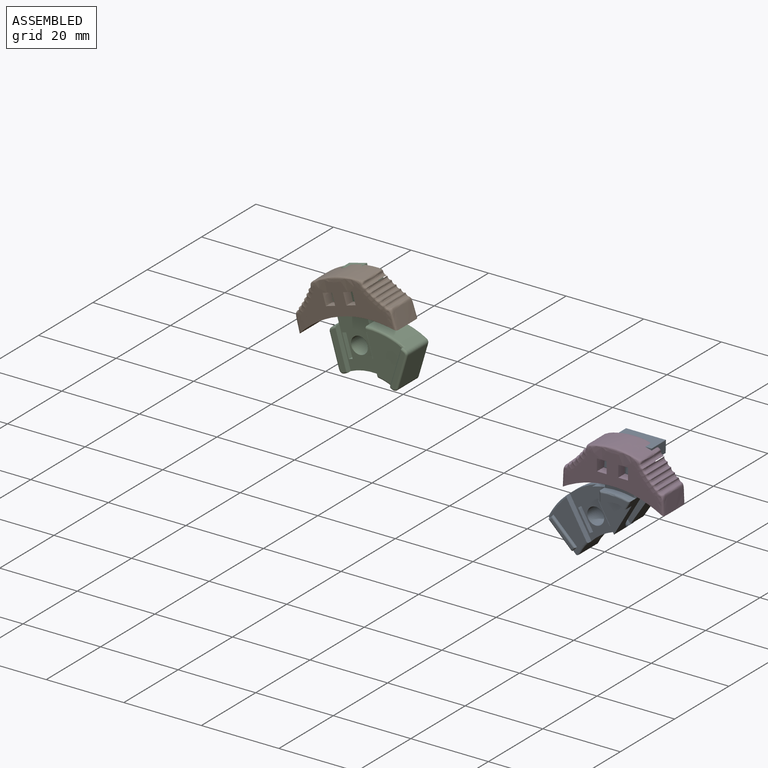
[diagram: assembled view]
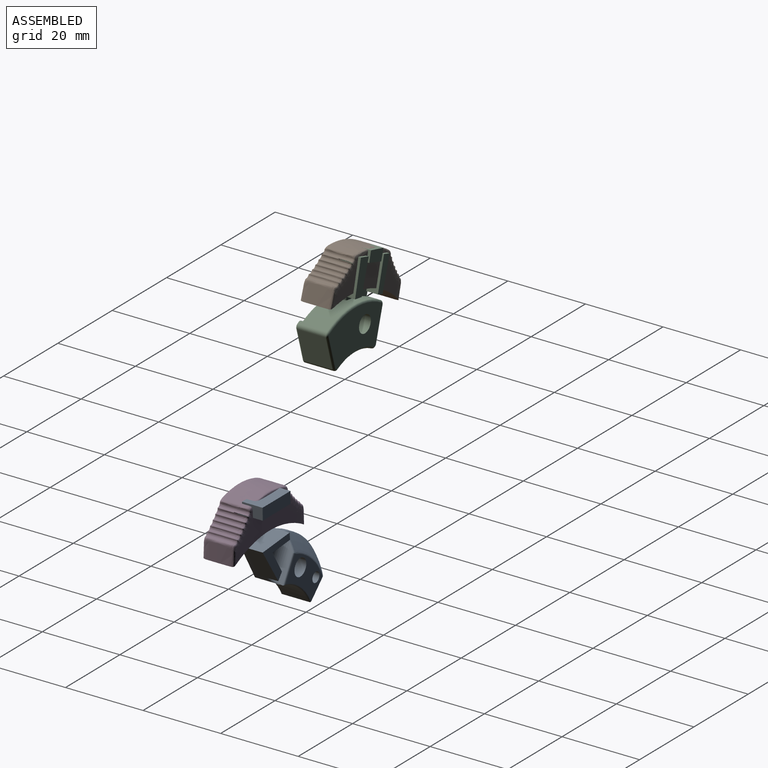
[diagram: assembled view, second angle]
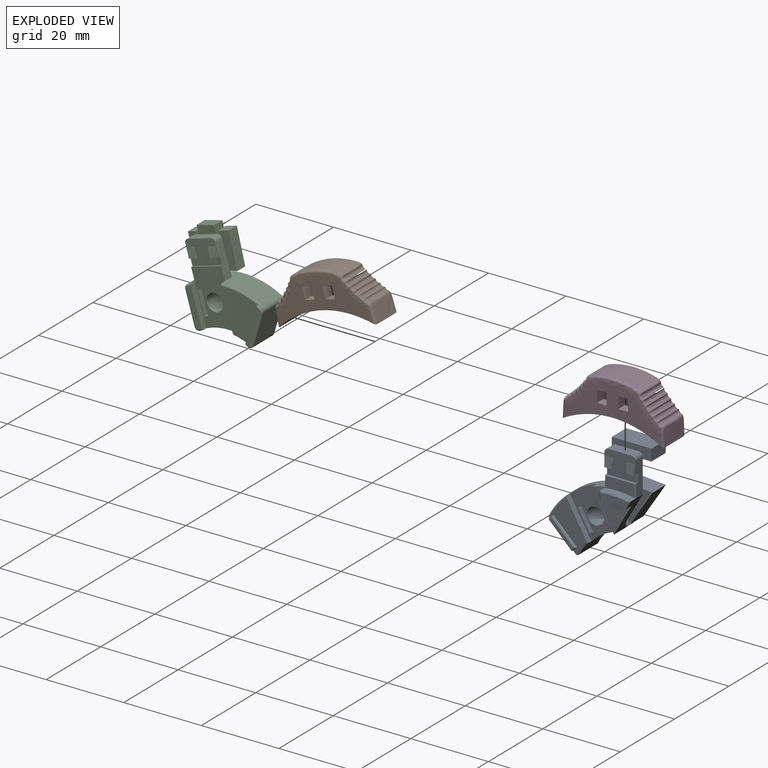
[diagram: exploded view]
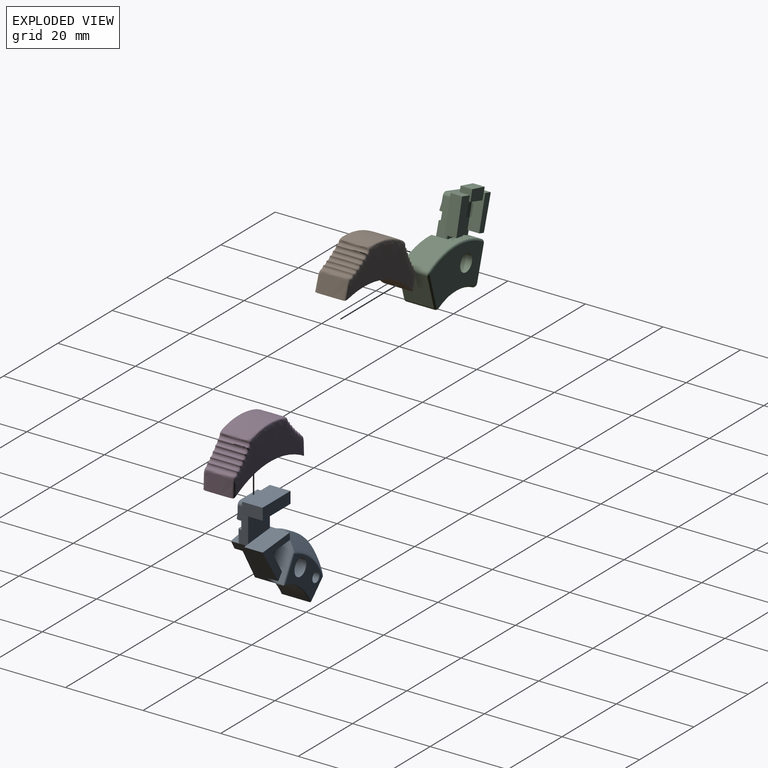
[diagram: exploded view, second angle]
ASSEMBLY  parts=4 mates=2
PART A: 93 faces, bbox 34.7x10.1x21.5 mm
  f0: plane 2.17x1.95mm, normal (-0.87,0,0.5), area 4.9mm2, adj f17,f19,f24,f74
  f1: plane 11.58x8mm, normal (0,-1,0), area 61.5mm2, adj f18,f23,f25,f27,f29,f40,f41,f42
  f2: plane 9.37x8mm, normal (-0.87,0,0.5), area 34.7mm2, adj f3,f8,f9,f15,f18,f53,f75,f77
  f3: plane 8.71x7.36mm, normal (0,-1,0), area 24mm2, adj f2,f4,f5,f6,f9,f10,f11,f12
  f4: plane 7.58x4.38mm, normal (0.87,0,-0.5), area 19.7mm2, adj f3,f8,f9,f15,f20,f52,f76,f78
  f5: plane 3.17x2.98mm, normal (0.08,-0.99,0.14), area 5.1mm2, adj f3,f9,f12,f14
  f6: plane 5.2x3mm, normal (0.5,0,0.87), area 16.2mm2, adj f3,f52,f53,f84
  f7: plane 7.58x6.36mm, normal (0,-1,0), area 20.1mm2, adj f15,f17,f75,f78
  f8: plane 11.14x10.83mm, normal (0,1,0), area 62mm2, adj f2,f4,f18,f81
  f9: plane 6.93x4mm, normal (-0.5,0,-0.87), area 7.3mm2, adj f2,f3,f4,f5,f10,f11,f12,f13
  f10: plane 3.17x2.98mm, normal (0.08,-0.99,0.14), area 5.1mm2, adj f3,f9,f11,f13
  f11: plane 2.17x1.25mm, normal (0.87,0,-0.5), area 0.5mm2, adj f3,f9,f10
  f12: plane 2.17x1.25mm, normal (-0.87,0,0.5), area 0.5mm2, adj f3,f5,f9
  f13: plane 2.17x1.25mm, normal (-0.87,0,0.5), area 0.5mm2, adj f3,f9,f10
  f14: plane 2.17x1.25mm, normal (0.87,0,-0.5), area 0.5mm2, adj f3,f5,f9
  f15: plane 6.93x4mm, normal (0.5,0,0.87), area 5.6mm2, adj f2,f4,f7,f16,f75,f76,f77,f78
  f16: plane 7.2x5.37mm, normal (0,-1,0), area 14.9mm2, adj f9,f15,f76,f77
  f17: cylinder r=20mm len=6.71mm, axis (0,1,0), area 12.6mm2, adj f0,f7,f18,f20,f73,f75,f78
  f18: cylinder r=20mm len=25mm, axis (0,1,0), area 49.4mm2, adj f1,f2,f8,f17,f20,f23,f24,f29
  f19: extruded ~5.8x3.46mm, area 16.6mm2, adj f0,f20,f21,f24,f72,f74
  f20: plane 10.06x6.52mm, normal (0.5,0,-0.87), area 34.4mm2, adj f4,f17,f18,f19,f23,f24,f25,f54
  f21: plane 6.88x4.81mm, normal (0,-1,0), area 11mm2, adj f19,f72,f73,f74
  f22: plane 6.93x5.53mm, normal (0,1,0), area 19.2mm2, adj f38,f56,f85,f89,f90
  f23: plane 11.18x1.6mm, normal (-1,0,0), area 17.9mm2, adj f1,f18,f20,f24
  f24: plane 11.18x7.89mm, normal (0,-1,0), area 46.2mm2, adj f0,f18,f19,f20,f23
  f25: cylinder r=14mm len=11.54mm, axis (0,1,0), area 70.7mm2, adj f1,f20,f26,f29,f54,f58,f60,f62
  f26: plane 8.89x1.46mm, normal (1,0,0), area 10.7mm2, adj f25,f38,f54,f63,f65,f66
  f27: cylinder r=2.19mm len=6mm, axis (0,1,0), area 82.4mm2, adj f1,f28
  f28: plane 13.39x9.12mm, normal (0,1,0), area 62.8mm2, adj f27,f30,f36,f39,f60,f62,f63,f66
  f29: plane 11.23x1.55mm, normal (1,0,0), area 16.7mm2, adj f1,f18,f25,f31,f58,f71
  f30: plane 9.75x7.81mm, normal (-0.96,0,-0.27), area 70.5mm2, adj f18,f28,f31,f32,f34,f39,f60,f70
  f31: plane 12.21x6.81mm, normal (0,-1,0), area 45.5mm2, adj f29,f30,f32,f33,f34,f58,f60,f71
  f32: plane 1.44x0.41mm, normal (0.27,0,-0.96), area 0.4mm2, adj f30,f31,f33,f68
  f33: plane 8.18x2.3mm, normal (0.96,0,0.27), area 2.1mm2, adj f31,f32,f34,f67
  f34: plane 1.44x0.41mm, normal (-0.27,0,0.96), area 0.4mm2, adj f30,f31,f33,f69
  f35: plane 7.48x2.63mm, normal (0,-1,0), area 4.6mm2, adj f67,f68,f69,f70
  f36: cylinder r=1.3mm len=5.4mm, axis (0,1,0), area 44.1mm2, adj f28,f37
  f37: plane 2.6x2.6mm, normal (0,1,0), area 5.3mm2, adj f36
  f38: cylinder r=3mm len=10.38mm, axis (0,0,-1), area 42.8mm2, adj f22,f26,f54,f57,f61,f64,f85,f86
  f39: bspline ~18.82x8.23mm, area 85.4mm2, adj f18,f28,f30,f59,f61,f64,f65
  f40: plane 6x3mm, normal (-1,0,0), area 18mm2, adj f1,f41,f44,f45
  f41: plane 3x0.53mm, normal (0,0,-1), area 1.6mm2, adj f1,f40,f42,f45
  f42: cylinder r=21.4mm len=3mm, axis (0,1,0), area 1.4mm2, adj f1,f41,f43,f45
  f43: plane 5.93x3mm, normal (1,0,0), area 17.8mm2, adj f1,f42,f44,f45
  f44: plane 3x1mm, normal (0,0,1), area 3mm2, adj f1,f40,f43,f45
  f45: plane 6x1mm, normal (0,-1,0), area 6mm2, adj f40,f41,f42,f43,f44
  f46: plane 3x0.53mm, normal (0,0,-1), area 1.6mm2, adj f1,f47,f50,f51
  f47: plane 6x3mm, normal (1,0,0), area 18mm2, adj f1,f46,f48,f51
  f48: plane 3x1mm, normal (0,0,1), area 3mm2, adj f1,f47,f49,f51
  f49: plane 5.93x3mm, normal (-1,0,0), area 17.8mm2, adj f1,f48,f50,f51
  f50: cylinder r=21.4mm len=3mm, axis (0,1,0), area 1.4mm2, adj f1,f46,f49,f51
  f51: plane 6x1mm, normal (0,-1,0), area 6mm2, adj f46,f47,f48,f49,f50
  f52: cylinder r=1mm len=2.7mm, axis (0,1,0), area 4.2mm2, adj f3,f4,f6,f84
  f53: cylinder r=1mm len=2.7mm, axis (0,1,0), area 4.2mm2, adj f2,f3,f6,f84
  f54: bspline ~4.68x3.45mm, area 3mm2, adj f20,f25,f26,f38,f55,f86,f87
  f55: cylinder r=0.45mm len=7.06mm, axis (0.87,0,0.5), area 5.4mm2, adj f20,f54,f56,f87
  f56: torus R=19.55mm, axis (0,-1,0), area 5.6mm2, adj f18,f22,f55,f57,f87
  f57: bspline ~3.69x1.67mm, area 1.9mm2, adj f18,f38,f56,f59
  f58: torus R=14.45mm, axis (0,-1,0), area 3mm2, adj f25,f29,f31,f60
  f59: bspline ~0.44x0.28mm, area 0mm2, adj f39,f57,f61
  f60: cylinder r=0.45mm len=7.5mm, axis (0,1,0), area 6.1mm2, adj f25,f28,f30,f31,f58,f62
  f61: bspline ~2.6x2.46mm, area 1.6mm2, adj f38,f39,f59,f64
  f62: torus R=14.45mm, axis (0,-1,0), area 8.5mm2, adj f25,f28,f60,f63
  f63: cylinder r=0.45mm len=7.03mm, axis (0,0,1), area 4.8mm2, adj f26,f28,f62,f66
  f64: bspline ~0.42x0.4mm, area 0.1mm2, adj f38,f39,f61,f65
  f65: bspline ~1.97x1.8mm, area 1.5mm2, adj f26,f39,f64,f66
  f66: bspline ~0.45x0.45mm, area 0.1mm2, adj f26,f28,f63,f65
  f67: cylinder r=0.45mm len=8.31mm, axis (0.27,0,-0.96), area 5.7mm2, adj f33,f35,f68,f69
  f68: cylinder r=0.45mm len=1.57mm, axis (-0.96,0,-0.27), area 0.7mm2, adj f32,f35,f67,f70
  f69: cylinder r=0.45mm len=1.57mm, axis (0.96,0,0.27), area 0.7mm2, adj f34,f35,f67,f70
  f70: cylinder r=0.45mm len=8.31mm, axis (-0.27,0,0.96), area 5.7mm2, adj f30,f35,f68,f69
  f71: torus R=19.55mm, axis (0,-1,0), area 5.3mm2, adj f18,f29,f30,f31
  f72: cylinder r=0.45mm len=2.45mm, axis (-0.87,0,-0.5), area 1.6mm2, adj f19,f20,f21,f73
  f73: torus R=19.55mm, axis (0,-1,0), area 5.3mm2, adj f17,f21,f72,f74
  f74: cylinder r=0.45mm len=2.39mm, axis (0.5,0,0.87), area 1.6mm2, adj f0,f19,f21,f73
  f75: cylinder r=0.45mm len=2.75mm, axis (0.5,0,0.87), area 2mm2, adj f2,f7,f15,f17
  f76: cylinder r=0.45mm len=2.04mm, axis (-0.5,0,-0.87), area 1.5mm2, adj f4,f9,f15,f16
  f77: cylinder r=0.45mm len=2.04mm, axis (0.5,0,0.87), area 1.5mm2, adj f2,f9,f15,f16
  f78: cylinder r=0.45mm len=3.13mm, axis (-0.5,0,-0.87), area 2.3mm2, adj f4,f7,f15,f17
  f79: plane 10.4x7.74mm, normal (0,1,0), area 30.8mm2, adj f2,f80,f81,f82,f83
  f80: plane 5.3x1.86mm, normal (-0.52,0,-0.85), area 11.6mm2, adj f79,f81,f83,f84
  f81: plane 6.93x5.3mm, normal (-0.5,0,-0.87), area 42.4mm2, adj f2,f8,f79,f80
  f82: plane 8.9x5.3mm, normal (0.5,0,0.87), area 54.4mm2, adj f2,f79,f83,f84
  f83: plane 5.3x2.6mm, normal (0.85,0,-0.53), area 16.2mm2, adj f79,f80,f82,f84
  f84: plane 10.15x7.74mm, normal (0,-1,0), area 19.2mm2, adj f2,f4,f6,f52,f53,f80,f82,f83
  f85: plane 5.84x4.8mm, normal (-0.48,0,0.88), area 32mm2, adj f22,f38,f86,f88,f89
  f86: plane 4.8x2.15mm, normal (-0.99,0,-0.13), area 10.4mm2, adj f38,f54,f85,f87,f88,f92
  f87: plane 10.51x9.6mm, normal (0,-1,0), area 26.2mm2, adj f54,f55,f56,f86,f90,f91,f92
  f88: plane 10.51x9.7mm, normal (0,1,0), area 33mm2, adj f85,f86,f89,f90,f91,f92
  f89: plane 5.3x4.8mm, normal (-0.57,0,-0.82), area 31.1mm2, adj f22,f85,f88,f90
  f90: plane 4.8x1.42mm, normal (-0.82,0,0.57), area 8.3mm2, adj f22,f87,f88,f89,f91
  f91: plane 8.16x5.73mm, normal (0.57,0,0.82), area 47.9mm2, adj f87,f88,f90,f92
  f92: plane 9.4x4.8mm, normal (0.45,0,-0.89), area 50.6mm2, adj f86,f87,f88,f91
PART B: 115 faces, bbox 26.3x8.3x13.2 mm
  f0: plane 8.3x1.05mm, normal (0,1,0), area 6.8mm2, adj f1,f112,f113,f114
  f1: plane 7.2x3.3mm, normal (1,0,0), area 23.2mm2, adj f0,f2,f3,f4,f110,f111,f112,f114
  f2: plane 8.3x1.4mm, normal (0,1,0), area 11.6mm2, adj f1,f3,f113,f114
  f3: plane 8.3x0.4mm, normal (0,0,1), area 3.3mm2, adj f1,f2,f4,f113
  f4: plane 8.3x4.75mm, normal (0,1,0), area 24.5mm2, adj f1,f3,f5,f103,f104,f105,f106,f107
  f5: plane 2.59x2.54mm, normal (0,0,-1), area 6.1mm2, adj f4,f6,f103,f105
  f6: bspline ~13.45x5.04mm, area 77.9mm2, adj f5,f7,f100,f101,f102,f103,f105,f106
  f7: plane 18.66x7.04mm, normal (0,-1,0), area 55mm2, adj f6,f8,f83,f84,f86,f88,f89,f90
  f8: bspline ~5.21x4.95mm, area 8.6mm2, adj f7,f9,f82,f102
  f9: cylinder r=0.68mm len=0.8mm, axis (0,1,0), area 1mm2, adj f8,f10,f80,f81
  f10: cylinder r=0.6mm len=0.8mm, axis (0,-1,0), area 0.7mm2, adj f9,f11,f101,f102
  f11: bspline ~4.28x4.01mm, area 7.8mm2, adj f10,f12,f81
  f12: bspline ~13.45x5.04mm, area 80.3mm2, adj f11,f13,f49,f101
  f13: bspline ~4.02x3.95mm, area 7.8mm2, adj f12,f14,f48
  f14: bspline ~5.21x4.95mm, area 8.5mm2, adj f13,f15,f47,f49
  f15: cylinder r=0.68mm len=0.8mm, axis (0,1,0), area 1mm2, adj f14,f16,f48,f99
  f16: cylinder r=0.1mm len=0.8mm, axis (0,1,0), area 0.2mm2, adj f15,f17,f18,f47
  f17: bspline ~4.44x3.32mm, area 0.8mm2, adj f16,f98,f99
  f18: cylinder r=0.68mm len=0.95mm, axis (0,1,0), area 1.2mm2, adj f16,f19,f46,f98
  f19: cylinder r=0.1mm len=0.8mm, axis (0,1,0), area 0.2mm2, adj f18,f20,f44,f45
  f20: bspline ~3.88x3.18mm, area 0.8mm2, adj f19,f21,f46
  f21: bspline ~6.11x5.68mm, area 10.6mm2, adj f20,f22,f43,f45,f49
  f22: bspline ~1.62x1.52mm, area 0mm2, adj f21,f23
  f23: bspline ~5.9x5.86mm, area 10.6mm2, adj f22,f24,f39,f42,f43,f49
  f24: bspline ~1.27x1.22mm, area 0mm2, adj f23,f25
  f25: bspline ~6.05x5.72mm, area 10.5mm2, adj f24,f26,f38,f42,f49
  f26: cylinder r=0.68mm len=0.9mm, axis (0,1,0), area 1.2mm2, adj f25,f27,f36,f93
  f27: cylinder r=0.1mm len=0.8mm, axis (0,1,0), area 0.2mm2, adj f26,f28,f29,f38
  f28: bspline ~4.44x3.14mm, area 0.6mm2, adj f27,f92,f93
  f29: cylinder r=0.68mm len=0.81mm, axis (0,1,0), area 0.9mm2, adj f27,f30,f35,f92
  f30: cylinder r=0.6mm len=0.8mm, axis (0,1,0), area 0.7mm2, adj f29,f31,f33,f34
  f31: bspline ~4.2x3.93mm, area 7.7mm2, adj f30,f32,f35
  f32: bspline ~4.61x3.87mm, area 21.6mm2, adj f31,f34,f49,f112
  f33: bspline ~4.2x3.93mm, area 7.7mm2, adj f30,f91,f92
  f34: plane 4.47x0.8mm, normal (-1,0,0.04), area 3.6mm2, adj f30,f32,f91,f112
  f35: bspline ~5.35x4.49mm, area 6.6mm2, adj f29,f31,f38,f49
  f36: cylinder r=0.1mm len=0.8mm, axis (0,1,0), area 0.2mm2, adj f26,f37,f39,f42
  f37: bspline ~3.88x2.5mm, area 0.7mm2, adj f36,f93,f95
  f38: bspline ~4.44x3.14mm, area 0.8mm2, adj f25,f27,f35
  f39: cylinder r=0.68mm len=0.88mm, axis (0,1,0), area 1.2mm2, adj f23,f36,f40,f95
  f40: cylinder r=0.1mm len=0.8mm, axis (0,1,0), area 0.2mm2, adj f39,f41,f43,f45
  f41: bspline ~3.88x2.53mm, area 0.7mm2, adj f40,f95,f97
  f42: bspline ~3.88x2.5mm, area 0.7mm2, adj f23,f25,f36
  f43: bspline ~3.88x2.01mm, area 0.7mm2, adj f21,f23,f40
  f44: bspline ~3.88x3.18mm, area 0.8mm2, adj f19,f97,f98
  f45: cylinder r=0.68mm len=0.91mm, axis (0,1,0), area 1.2mm2, adj f19,f21,f40,f97
  f46: bspline ~6.34x5.48mm, area 10.5mm2, adj f18,f20,f47,f49
  f47: bspline ~4.44x3.32mm, area 0.6mm2, adj f14,f16,f46
  f48: cylinder r=0.6mm len=0.8mm, axis (0,-1,0), area 0.7mm2, adj f13,f15,f100,f101
  f49: plane 18.67x7.02mm, normal (0,1,0), area 67.7mm2, adj f12,f14,f21,f23,f25,f32,f35,f46
  f50: bspline ~6.05x5.72mm, area 10.5mm2, adj f49,f51,f70,f71,f72
  f51: cylinder r=0.68mm len=0.9mm, axis (0,1,0), area 1.2mm2, adj f50,f52,f63,f88
  f52: cylinder r=0.1mm len=0.8mm, axis (0,1,0), area 0.2mm2, adj f51,f53,f54,f71
  f53: bspline ~3.88x2.5mm, area 0.7mm2, adj f52,f86,f88
  f54: cylinder r=0.68mm len=0.88mm, axis (0,1,0), area 1.2mm2, adj f52,f55,f73,f86
  f55: cylinder r=0.1mm len=0.8mm, axis (0,1,0), area 0.2mm2, adj f54,f56,f57,f58
  f56: bspline ~3.88x2.53mm, area 0.7mm2, adj f55,f73,f75
  f57: bspline ~4.43x2.01mm, area 0.7mm2, adj f55,f84,f86
  f58: cylinder r=0.68mm len=0.91mm, axis (0,1,0), area 1.2mm2, adj f55,f59,f75,f84
  f59: cylinder r=0.1mm len=0.8mm, axis (0,1,0), area 0.2mm2, adj f58,f60,f61,f62
  f60: bspline ~3.88x3.18mm, area 0.8mm2, adj f59,f75,f76
  f61: bspline ~3.88x3.18mm, area 0.8mm2, adj f59,f83,f84
  f62: cylinder r=0.68mm len=0.95mm, axis (0,1,0), area 1.2mm2, adj f59,f76,f80,f83
  f63: cylinder r=0.1mm len=0.8mm, axis (0,1,0), area 0.2mm2, adj f51,f64,f69,f72
  f64: cylinder r=0.68mm len=0.81mm, axis (0,1,0), area 0.9mm2, adj f63,f65,f79,f89
  f65: cylinder r=0.6mm len=0.8mm, axis (0,1,0), area 0.7mm2, adj f64,f66,f67,f68
  f66: bspline ~4.2x3.93mm, area 7.7mm2, adj f65,f78,f79
  f67: plane 4.47x0.8mm, normal (1,0,0.04), area 3.6mm2, adj f65,f78,f90,f112
  f68: bspline ~4.2x3.93mm, area 7.7mm2, adj f65,f89,f90
  f69: bspline ~4.44x3.14mm, area 0.8mm2, adj f63,f88,f89
  f70: bspline ~1.27x1.22mm, area 0mm2, adj f50,f73
  f71: bspline ~4.44x2.5mm, area 0.7mm2, adj f50,f52,f73
  f72: bspline ~3.88x3.14mm, area 0.8mm2, adj f50,f63,f79
  f73: bspline ~5.9x5.86mm, area 10.7mm2, adj f49,f54,f56,f70,f71,f74
  f74: bspline ~1.29x1.2mm, area 0mm2, adj f73,f75
  f75: bspline ~6.11x5.68mm, area 10.7mm2, adj f49,f56,f58,f60,f74
  f76: bspline ~6.34x5.48mm, area 10.5mm2, adj f49,f60,f62,f77
  f77: bspline ~3.88x3.32mm, area 0.6mm2, adj f76,f80,f81
  f78: bspline ~4.61x3.87mm, area 21.5mm2, adj f49,f66,f67,f112
  f79: bspline ~5.23x4.35mm, area 6.6mm2, adj f49,f64,f66,f72
  f80: cylinder r=0.1mm len=0.8mm, axis (0,1,0), area 0.2mm2, adj f9,f62,f77,f82
  f81: bspline ~5.21x4.95mm, area 8.5mm2, adj f9,f11,f49,f77
  f82: bspline ~4.44x3.32mm, area 0.8mm2, adj f8,f80,f83
  f83: bspline ~6.34x5.48mm, area 10.6mm2, adj f7,f61,f62,f82
  f84: bspline ~6.11x5.68mm, area 10.6mm2, adj f7,f57,f58,f61,f85
  f85: bspline ~1.62x1.52mm, area 0mm2, adj f84,f86
  f86: bspline ~5.9x5.86mm, area 10.6mm2, adj f7,f53,f54,f57,f85,f87
  f87: bspline ~1.27x1.22mm, area 0mm2, adj f86,f88
  f88: bspline ~6.05x5.72mm, area 10.6mm2, adj f7,f51,f53,f69,f87
  f89: bspline ~5.35x4.49mm, area 6.6mm2, adj f7,f64,f68,f69
  f90: bspline ~4.61x3.87mm, area 21.6mm2, adj f7,f67,f68,f112
  f91: bspline ~4.61x3.87mm, area 21.5mm2, adj f7,f33,f34,f112
  f92: bspline ~5.23x4.35mm, area 6.6mm2, adj f7,f28,f29,f33
  f93: bspline ~6.05x5.72mm, area 10.6mm2, adj f7,f26,f28,f37,f94
  f94: bspline ~1.27x1.22mm, area 0mm2, adj f93,f95
  f95: bspline ~5.9x5.86mm, area 10.5mm2, adj f7,f37,f39,f41,f94,f96
  f96: bspline ~1.29x1.2mm, area 0mm2, adj f95,f97
  f97: bspline ~6.11x5.68mm, area 10.5mm2, adj f7,f41,f44,f45,f96
  f98: bspline ~6.34x5.48mm, area 10.6mm2, adj f7,f17,f18,f44
  f99: bspline ~5.38x5.11mm, area 8.7mm2, adj f7,f15,f17,f100
  f100: bspline ~4.02x3.94mm, area 7.7mm2, adj f6,f48,f99
  f101: cylinder r=20mm len=13.45mm, axis (0,1,0), area 11mm2, adj f6,f10,f12,f48
  f102: bspline ~4.28x4.01mm, area 7.8mm2, adj f6,f8,f10
  f103: plane 3x2.45mm, normal (-1,0,0), area 7.4mm2, adj f4,f5,f6,f7,f104
  f104: plane 2.5x2.45mm, normal (0,0,1), area 6.1mm2, adj f4,f7,f103,f105
  f105: plane 3.01x2.46mm, normal (1,0,0), area 7.4mm2, adj f4,f5,f6,f7,f104
  f106: plane 2.59x2.54mm, normal (0,0,-1), area 6.1mm2, adj f4,f6,f107,f109
  f107: plane 3.01x2.46mm, normal (-1,0,0), area 7.4mm2, adj f4,f6,f7,f106,f108
  f108: plane 2.5x2.45mm, normal (0,0,1), area 6.1mm2, adj f4,f7,f107,f109
  f109: plane 3x2.45mm, normal (1,0,0), area 7.4mm2, adj f4,f6,f7,f106,f108
  f110: plane 8.3x3.3mm, normal (0,0,-1), area 27.4mm2, adj f1,f4,f111,f113
  f111: plane 8.3x7.2mm, normal (0,-1,0), area 57.8mm2, adj f1,f110,f112,f113
  f112: cylinder r=25mm len=26.2mm, axis (0,1,0), area 197.3mm2, adj f0,f1,f7,f32,f34,f49,f67,f78
  f113: plane 7.2x3.3mm, normal (-1,0,0), area 23.2mm2, adj f0,f2,f3,f4,f110,f111,f112,f114
  f114: plane 8.3x0.4mm, normal (0,0,-1), area 3.3mm2, adj f0,f1,f2,f113
PART C: 93 faces, bbox 23.2x8.4x23.5 mm
  f0: plane 10.38x8.77mm, normal (0,1,0), area 52.5mm2, adj f7,f53,f55,f57,f78,f79,f83,f84
  f1: plane 2.96x2.62mm, normal (-0.04,-0.99,0.15), area 5.1mm2, adj f2,f3,f36,f38
  f2: plane 1.92x0.57mm, normal (0.28,0.02,-0.96), area 0.8mm2, adj f1,f31,f36,f38
  f3: plane 8.65x6.14mm, normal (0,-1,0), area 24mm2, adj f1,f4,f5,f19,f31,f33,f35,f36
  f4: plane 8.43x2.5mm, normal (0.96,0,0.28), area 21mm2, adj f3,f6,f7,f30,f31,f32,f39,f53
  f5: plane 8.14x2.5mm, normal (-0.96,0,-0.28), area 20.2mm2, adj f3,f6,f7,f30,f31,f32,f40,f57
  f6: plane 15.53x11.94mm, normal (0,-1,0), area 85mm2, adj f4,f5,f8,f13,f15,f16,f20,f21
  f7: cylinder r=20mm len=19.62mm, axis (0,1,0), area 101.8mm2, adj f0,f4,f5,f13,f16,f41,f44,f52
  f8: cylinder r=14mm len=12.88mm, axis (0,1,0), area 79.1mm2, adj f6,f13,f16,f42,f43,f45,f62,f65
  f9: plane 8.24x7.3mm, normal (0.96,0,-0.28), area 62.7mm2, adj f43,f44,f48,f64
  f10: plane 9.23x2.72mm, normal (-0.96,0,0.28), area 2.9mm2, adj f14,f59,f62,f65,f66
  f11: plane 9.47x3.52mm, normal (0,-1,0), area 9.5mm2, adj f60,f61,f64,f66,f67,f69
  f12: plane 19.64x11.68mm, normal (0,1,0), area 160mm2, adj f15,f45,f46,f47,f48,f49,f50,f51
  f13: plane 11.23x3.34mm, normal (-0.96,0,-0.28), area 17.4mm2, adj f6,f7,f8,f14,f58,f62
  f14: plane 11.23x9.37mm, normal (0,-1,0), area 66.4mm2, adj f10,f13,f58,f59,f62
  f15: cylinder r=2.19mm len=6mm, axis (0,1,0), area 82.4mm2, adj f6,f12
  f16: plane 10.26x3.04mm, normal (0.96,0,0.28), area 15.9mm2, adj f6,f7,f8,f18,f70,f74
  f17: plane 8.24x6.5mm, normal (-0.96,0,-0.28), area 55.8mm2, adj f41,f42,f49,f72
  f18: plane 9.7x3.98mm, normal (0,-1,0), area 14.3mm2, adj f16,f70,f71,f72,f73,f74
  f19: plane 5.76x2.5mm, normal (-0.28,0,0.96), area 15mm2, adj f3,f39,f40,f55
  f20: plane 3x1.01mm, normal (-0.28,0,0.96), area 3.2mm2, adj f6,f21,f23,f24
  f21: plane 5.76x3mm, normal (-0.96,0,-0.28), area 18mm2, adj f6,f20,f22,f24
  f22: plane 3x1.01mm, normal (0.28,0,-0.96), area 3.1mm2, adj f6,f21,f23,f24
  f23: plane 5.76x3mm, normal (0.96,0,0.28), area 18mm2, adj f6,f20,f22,f24
  f24: plane 6.05x2.7mm, normal (0,-1,0), area 6.3mm2, adj f20,f21,f22,f23
  f25: plane 5.76x3mm, normal (0.96,0,0.28), area 18mm2, adj f6,f26,f28,f29
  f26: plane 3x1.01mm, normal (-0.28,0,0.96), area 3.1mm2, adj f6,f25,f27,f29
  f27: plane 5.76x3mm, normal (-0.96,0,-0.28), area 18mm2, adj f6,f26,f28,f29
  f28: plane 3x1.01mm, normal (0.28,0,-0.96), area 3.2mm2, adj f6,f25,f27,f29
  f29: plane 6.05x2.7mm, normal (0,-1,0), area 6.3mm2, adj f25,f26,f27,f28
  f30: plane 7.68x2.26mm, normal (-0.28,0,0.96), area 4mm2, adj f4,f5,f6,f32
  f31: plane 7.68x2.26mm, normal (0.28,0,-0.96), area 4mm2, adj f2,f3,f4,f5,f32,f34
  f32: plane 8.24x4.18mm, normal (0,-1,0), area 16mm2, adj f4,f5,f30,f31
  f33: plane 2.96x2.62mm, normal (-0.04,-0.99,0.15), area 5.1mm2, adj f3,f34,f35,f37
  f34: plane 1.92x0.57mm, normal (0.28,0.02,-0.96), area 0.8mm2, adj f31,f33,f35,f37
  f35: plane 2.4x0.71mm, normal (0.96,0,0.28), area 0.5mm2, adj f3,f33,f34
  f36: plane 2.4x0.71mm, normal (-0.96,0,-0.28), area 0.5mm2, adj f1,f2,f3
  f37: plane 2.4x0.71mm, normal (-0.96,0,-0.28), area 0.5mm2, adj f3,f33,f34
  f38: plane 2.4x0.71mm, normal (0.96,0,0.28), area 0.5mm2, adj f1,f2,f3
  f39: cylinder r=1mm len=2.5mm, axis (0,1,0), area 3.9mm2, adj f3,f4,f19,f54
  f40: cylinder r=1mm len=2.5mm, axis (0,1,0), area 3.9mm2, adj f3,f5,f19,f56
  f41: cylinder r=1mm len=6.5mm, axis (0,1,0), area 8.7mm2, adj f7,f17,f51,f71
  f42: cylinder r=1mm len=6.5mm, axis (0,1,0), area 11.5mm2, adj f8,f17,f47,f73
  f43: cylinder r=1mm len=7.3mm, axis (0,1,0), area 12.9mm2, adj f8,f9,f46,f67
  f44: cylinder r=1mm len=7.3mm, axis (0,1,0), area 9.8mm2, adj f7,f9,f50,f61
  f45: torus R=14.5mm, axis (0,-1,0), area 10.6mm2, adj f8,f12,f46,f47
  f46: torus R=0.5mm, axis (0,-1,0), area 1.1mm2, adj f12,f43,f45,f48
  f47: torus R=0.5mm, axis (0,-1,0), area 1.1mm2, adj f12,f42,f45,f49
  f48: cylinder r=0.5mm len=8.38mm, axis (0.28,0,0.96), area 6.7mm2, adj f9,f12,f46,f50
  f49: cylinder r=0.5mm len=8.38mm, axis (0.28,0,-0.96), area 6.7mm2, adj f12,f17,f47,f51
  f50: torus R=0.5mm, axis (0,-1,0), area 0.9mm2, adj f12,f44,f48,f52
  f51: torus R=0.5mm, axis (0,-1,0), area 0.9mm2, adj f12,f41,f49,f52
  f52: torus R=19.5mm, axis (0,-1,0), area 16mm2, adj f7,f12,f50,f51
  f53: cylinder r=0.5mm len=8.57mm, axis (-0.28,0,0.96), area 6.9mm2, adj f0,f4,f7,f54,f81
  f54: torus R=0.5mm, axis (0,-1,0), area 1mm2, adj f39,f53,f55,f81
  f55: cylinder r=0.5mm len=5.9mm, axis (-0.96,0,-0.28), area 4.7mm2, adj f0,f19,f54,f56,f75,f81,f87
  f56: torus R=0.5mm, axis (0,-1,0), area 1mm2, adj f40,f55,f57,f75
  f57: cylinder r=0.5mm len=8.28mm, axis (0.28,0,-0.96), area 6.6mm2, adj f0,f5,f7,f56,f75
  f58: torus R=19.5mm, axis (0,-1,0), area 8mm2, adj f7,f13,f14,f59
  f59: cylinder r=0.5mm len=0.8mm, axis (0,1,0), area 0.4mm2, adj f7,f10,f14,f58,f63
  f60: torus R=19.5mm, axis (0,-1,0), area 0.5mm2, adj f7,f11,f61,f63
  f61: torus R=0.5mm, axis (0,-1,0), area 0.9mm2, adj f11,f44,f60,f64
  f62: torus R=14.5mm, axis (0,-1,0), area 3mm2, adj f8,f10,f13,f14,f65
  f63: sphere r=0.5mm, area 0.5mm2, adj f59,f60,f66
  f64: cylinder r=0.5mm len=8.38mm, axis (-0.28,0,-0.96), area 6.7mm2, adj f9,f11,f61,f67
  f65: cylinder r=0.5mm len=0.8mm, axis (0,1,0), area 0.4mm2, adj f8,f10,f62,f68
  f66: cylinder r=0.5mm len=9.37mm, axis (0.28,0,0.96), area 7.6mm2, adj f10,f11,f63,f68
  f67: torus R=0.5mm, axis (0,-1,0), area 1.1mm2, adj f11,f43,f64,f69
  f68: sphere r=0.5mm, area 0.3mm2, adj f65,f66,f69
  f69: torus R=14.5mm, axis (0,-1,0), area 0.3mm2, adj f8,f11,f67,f68
  f70: torus R=19.5mm, axis (0,-1,0), area 0.9mm2, adj f7,f16,f18,f71
  f71: torus R=0.5mm, axis (0,-1,0), area 0.9mm2, adj f18,f41,f70,f72
  f72: cylinder r=0.5mm len=8.38mm, axis (-0.28,0,0.96), area 6.7mm2, adj f17,f18,f71,f73
  f73: torus R=0.5mm, axis (0,-1,0), area 1.1mm2, adj f18,f42,f72,f74
  f74: torus R=14.5mm, axis (0,-1,0), area 0.7mm2, adj f8,f16,f18,f73
  f75: plane 9.08x3.97mm, normal (0,-1,0), area 14mm2, adj f55,f56,f57,f77,f78,f79,f80
  f76: plane 9.08x4.3mm, normal (0,1,0), area 17.4mm2, adj f77,f78,f79,f80
  f77: plane 3x2.03mm, normal (-0.28,0,0.96), area 6.3mm2, adj f75,f76,f78,f80
  f78: plane 8.56x3mm, normal (0.97,0,0.26), area 26.6mm2, adj f0,f75,f76,f77,f79
  f79: plane 3x1.73mm, normal (0.29,0,-0.96), area 5.4mm2, adj f0,f75,f76,f78,f80
  f80: plane 8.5x3mm, normal (-0.96,0,-0.29), area 26.6mm2, adj f75,f76,f77,f79
  f81: plane 9.24x5.01mm, normal (0,-1,0), area 20.7mm2, adj f53,f54,f55,f83,f84,f85,f86
  f82: plane 9.31x5.01mm, normal (0,1,0), area 24.4mm2, adj f83,f84,f85,f86
  f83: plane 3x2.42mm, normal (0.16,0,-0.99), area 7.4mm2, adj f0,f81,f82,f84,f86
  f84: plane 8.49x3mm, normal (-0.96,0,-0.29), area 26.6mm2, adj f0,f81,f82,f83,f85
  f85: plane 3x2.85mm, normal (-0.28,0,0.96), area 8.9mm2, adj f81,f82,f84,f86
  f86: plane 8.92x3mm, normal (0.97,0,0.24), area 27.5mm2, adj f81,f82,f83,f85
  f87: plane 5.14x3.58mm, normal (0,-1,0), area 11.4mm2, adj f55,f89,f91,f92
  f88: plane 5.25x4.01mm, normal (0,1,0), area 13.4mm2, adj f89,f90,f91,f92
  f89: plane 3x2.72mm, normal (0.97,0,0.24), area 8.4mm2, adj f0,f87,f88,f90,f91
  f90: plane 4.41x3mm, normal (0.28,0,-0.96), area 13.8mm2, adj f0,f88,f89,f92
  f91: plane 4.59x3mm, normal (-0.25,0,0.97), area 14.2mm2, adj f87,f88,f89,f92
  f92: plane 3x2.84mm, normal (-0.96,0,-0.28), area 8.9mm2, adj f0,f87,f88,f90,f91
PART D: same geometry as B
PLACE A rot(axis=(0,-1,0),30deg) t=(24.01,19.89,-22.91)mm fixed
PLACE B rot(axis=(0,-1,0),16.4deg) t=(-28.91,1.8,21.43)mm
PLACE C t=(-23.3,2.45,8.77)mm fixed
PLACE D t=(29.57,17.34,-8.46)mm
MATE fastened A.f6 <-> D.f110  axis (0,0,1) through (29.57,13.24,-1.6)mm
MATE fastened C.f19 <-> B.f110  axis (-0.28,0,0.96) through (-30.85,-2.3,28)mm
